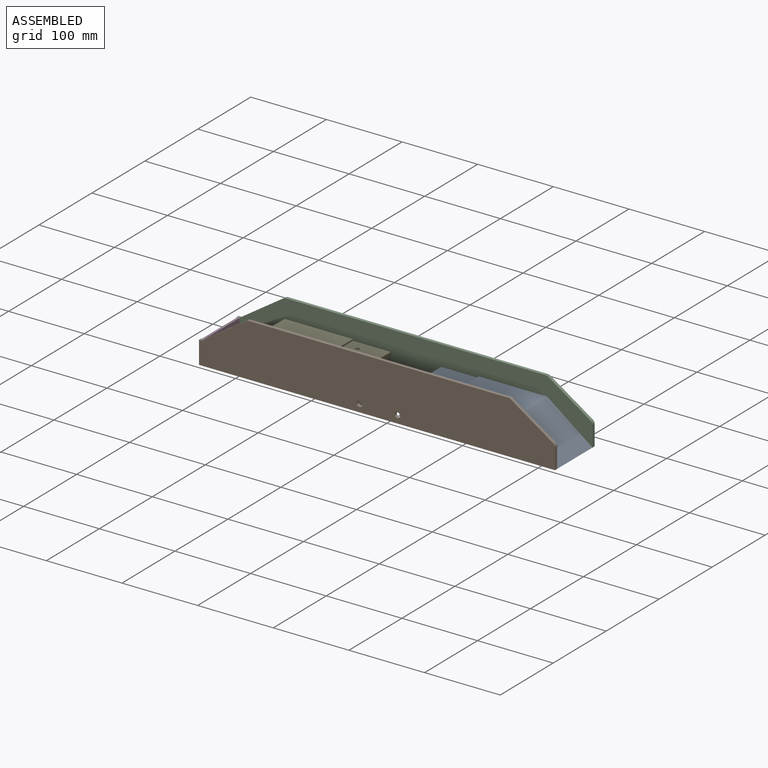
[diagram: assembled view]
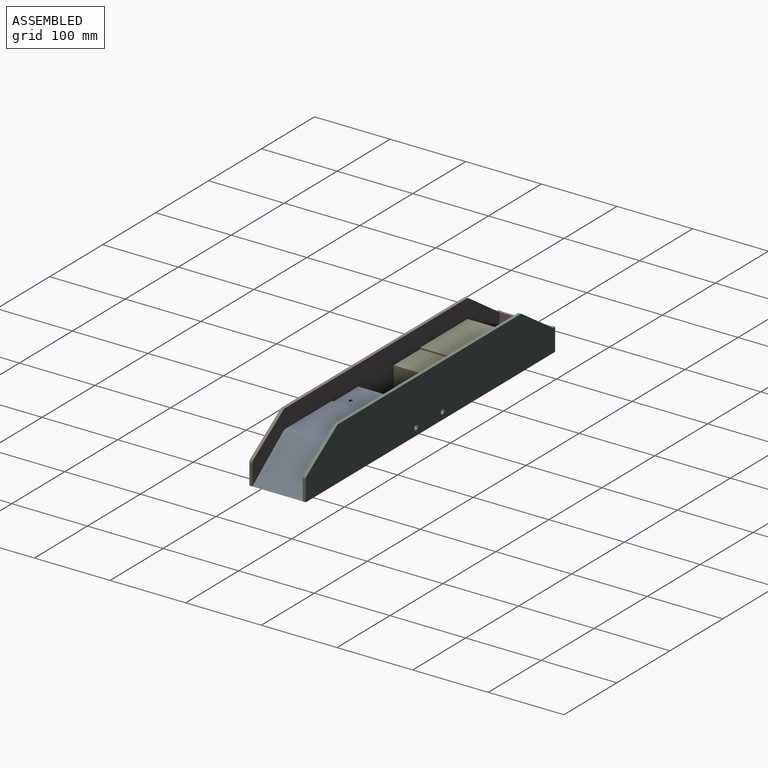
[diagram: assembled view, second angle]
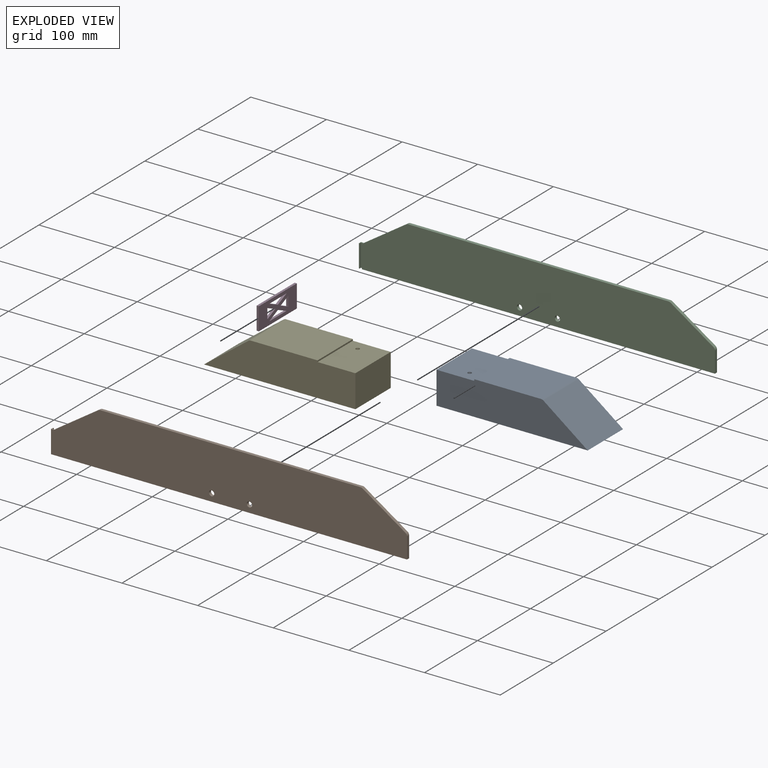
[diagram: exploded view]
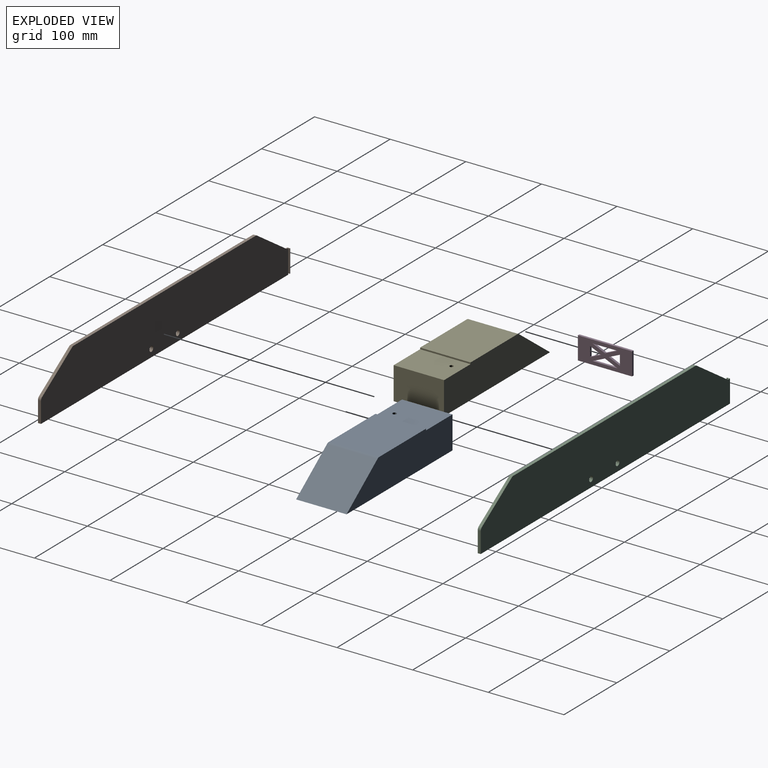
[diagram: exploded view, second angle]
ASSEMBLY  parts=5 mates=4
PART A: 11 faces, bbox 200x66.7x45 mm
  f0: plane 200x45mm, normal (0,-1,0), area 7549.7mm2, adj f2,f3,f4,f5,f6,f7,f8
  f1: plane 200x45mm, normal (0,1,0), area 7549.7mm2, adj f2,f3,f4,f5,f6,f7,f8
  f2: plane 66.7x43mm, normal (-1,0,0), area 2868.1mm2, adj f0,f1,f4,f7
  f3: plane 88.33x66.7mm, normal (0,0,1), area 5891.8mm2, adj f0,f1,f6,f8
  f4: plane 200x66.7mm, normal (0,0,-1), area 13340mm2, adj f0,f1,f2,f5
  f5: plane 66.7x58.67mm, normal (0.6,0,0.8), area 4891.3mm2, adj f0,f1,f4,f8
  f6: plane 66.7x2mm, normal (-1,0,0), area 133.4mm2, adj f0,f1,f3,f7
  f7: plane 66.7x50mm, normal (0,0,1), area 3315.4mm2, adj f0,f1,f2,f6,f9
  f8: cylinder r=5mm len=66.7mm, axis (0,1,0), area 214.6mm2, adj f0,f1,f3,f5
  f9: cylinder r=2.5mm len=10mm, axis (0,0,1), area 157.1mm2, adj f7,f10
  f10: plane 5x5mm, normal (0,0,1), area 19.6mm2, adj f9
PART B: 18 faces, bbox 470.7x4x70 mm
  f0: plane 30x1mm, normal (0,1,0), area 30mm2, adj f5,f11,f12,f13
  f1: plane 470.7x70mm, normal (0,-1,0), area 30310.5mm2, adj f2,f3,f5,f6,f7,f8,f9,f10
  f2: plane 27.32x4mm, normal (1,0,0), area 109.3mm2, adj f1,f4,f5,f10
  f3: plane 343.67x4mm, normal (0,0,1), area 1374.7mm2, adj f1,f4,f8,f9
  f4: plane 466.7x70mm, normal (0,1,0), area 30190.5mm2, adj f2,f3,f5,f6,f7,f8,f9,f10
  f5: plane 470.7x4mm, normal (0,0,-1), area 1875.3mm2, adj f0,f1,f2,f4,f12,f13,f14,f15
  f6: plane 58.74x39.16mm, normal (-0.55,0,0.83), area 282.4mm2, adj f1,f4,f8,f11,f15
  f7: plane 56.51x37.68mm, normal (0.55,0,0.83), area 271.7mm2, adj f1,f4,f9,f10
  f8: cylinder r=5mm len=4mm, axis (0,1,0), area 11.8mm2, adj f1,f3,f4,f6
  f9: cylinder r=5mm len=4mm, axis (0,-1,0), area 11.8mm2, adj f1,f3,f4,f7
  f10: cylinder r=5mm len=4.16mm, axis (0,-1,0), area 19.7mm2, adj f1,f2,f4,f7
  f11: plane 4x4mm, normal (0,0,1), area 8.5mm2, adj f0,f1,f6,f12,f13,f14
  f12: plane 30x4mm, normal (-1,0,0), area 120mm2, adj f0,f1,f5,f11
  f13: plane 30x2.5mm, normal (1,0,0), area 75mm2, adj f0,f5,f11,f14
  f14: plane 30x3mm, normal (0,1,0), area 90mm2, adj f5,f11,f13,f15
  f15: plane 30x2.5mm, normal (-1,0,0), area 75mm2, adj f4,f5,f6,f14
  f16: cylinder r=3.5mm len=7mm, axis (0,-1,0), area 88mm2, adj f1,f4
  f17: cylinder r=3.5mm len=7mm, axis (0,-1,0), area 88mm2, adj f1,f4
PART C: 18 faces, bbox 470.7x4x70 mm
  f0: plane 30x1mm, normal (0,-1,0), area 30mm2, adj f1,f11,f12,f14
  f1: plane 470.7x4mm, normal (0,0,-1), area 1875.3mm2, adj f0,f2,f4,f5,f12,f13,f14,f15
  f2: plane 470.7x70mm, normal (0,1,0), area 30310.5mm2, adj f1,f3,f5,f6,f7,f8,f9,f10
  f3: plane 343.67x4mm, normal (0,0,1), area 1374.7mm2, adj f2,f4,f8,f10
  f4: plane 466.7x70mm, normal (0,-1,0), area 30190.5mm2, adj f1,f3,f5,f6,f7,f8,f9,f10
  f5: plane 27.32x4mm, normal (1,0,0), area 109.3mm2, adj f1,f2,f4,f9
  f6: plane 58.74x39.16mm, normal (-0.55,0,0.83), area 282.4mm2, adj f2,f4,f8,f11,f15
  f7: plane 56.51x37.68mm, normal (0.55,0,0.83), area 271.7mm2, adj f2,f4,f9,f10
  f8: cylinder r=5mm len=4mm, axis (0,1,0), area 11.8mm2, adj f2,f3,f4,f6
  f9: cylinder r=5mm len=4.16mm, axis (0,1,0), area 19.7mm2, adj f2,f4,f5,f7
  f10: cylinder r=5mm len=4mm, axis (0,1,0), area 11.8mm2, adj f2,f3,f4,f7
  f11: plane 4x4mm, normal (0,0,1), area 8.5mm2, adj f0,f2,f6,f12,f13,f14
  f12: plane 30x4mm, normal (-1,0,0), area 120mm2, adj f0,f1,f2,f11
  f13: plane 30x3mm, normal (0,-1,0), area 90mm2, adj f1,f11,f14,f15
  f14: plane 30x2.5mm, normal (1,0,0), area 75mm2, adj f0,f1,f11,f13
  f15: plane 30x2.5mm, normal (-1,0,0), area 75mm2, adj f1,f4,f6,f13
  f16: cylinder r=3.5mm len=7mm, axis (0,1,0), area 88mm2, adj f2,f4
  f17: cylinder r=3.5mm len=7mm, axis (0,1,0), area 88mm2, adj f2,f4
PART D: 18 faces, bbox 3x71.7x30 mm
  f0: plane 14.73x6.62mm, normal (0,0.41,-0.91), area 48.4mm2, adj f1,f15,f16,f17
  f1: plane 13.25x3mm, normal (0,-1,0), area 39.7mm2, adj f0,f15,f16,f17
  f2: plane 14.73x6.62mm, normal (0,-0.41,-0.91), area 48.4mm2, adj f3,f11,f16,f17
  f3: plane 14.73x6.62mm, normal (0,-0.41,0.91), area 48.4mm2, adj f2,f11,f16,f17
  f4: plane 16.33x7.35mm, normal (0,-0.41,0.91), area 53.7mm2, adj f5,f12,f16,f17
  f5: plane 16.33x7.35mm, normal (0,0.41,0.91), area 53.7mm2, adj f4,f12,f16,f17
  f6: plane 16.33x7.35mm, normal (0,0.41,-0.91), area 53.7mm2, adj f7,f13,f16,f17
  f7: plane 16.33x7.35mm, normal (0,-0.41,-0.91), area 53.7mm2, adj f6,f13,f16,f17
  f8: plane 71.7x3mm, normal (0,0,1), area 215.1mm2, adj f9,f14,f16,f17
  f9: plane 30x3mm, normal (0,-1,0), area 90mm2, adj f8,f10,f16,f17
  f10: plane 71.7x3mm, normal (0,0,-1), area 215.1mm2, adj f9,f14,f16,f17
  f11: plane 13.25x3mm, normal (0,1,0), area 39.7mm2, adj f2,f3,f16,f17
  f12: plane 32.67x3mm, normal (0,0,-1), area 98mm2, adj f4,f5,f16,f17
  f13: plane 32.67x3mm, normal (0,0,1), area 98mm2, adj f6,f7,f16,f17
  f14: plane 30x3mm, normal (0,1,0), area 90mm2, adj f8,f10,f16,f17
  f15: plane 14.73x6.62mm, normal (0,0.41,0.91), area 48.4mm2, adj f0,f1,f16,f17
  f16: plane 71.7x30mm, normal (1,0,0), area 1715.9mm2, adj f0,f1,f2,f3,f4,f5,f6,f7
  f17: plane 71.7x30mm, normal (-1,0,0), area 1715.9mm2, adj f0,f1,f2,f3,f4,f5,f6,f7
PART E: 11 faces, bbox 200x66.7x45 mm
  f0: plane 200x45mm, normal (0,-1,0), area 7549.7mm2, adj f2,f3,f4,f5,f6,f7,f9
  f1: plane 200x45mm, normal (0,1,0), area 7549.7mm2, adj f2,f3,f4,f5,f6,f7,f9
  f2: plane 66.7x43mm, normal (1,0,0), area 2868.1mm2, adj f0,f1,f4,f7
  f3: plane 88.33x66.7mm, normal (0,0,1), area 5891.8mm2, adj f0,f1,f6,f9
  f4: plane 200x66.7mm, normal (0,0,-1), area 13340mm2, adj f0,f1,f2,f5
  f5: plane 66.7x58.67mm, normal (-0.6,0,0.8), area 4891.3mm2, adj f0,f1,f4,f9
  f6: plane 66.7x2mm, normal (1,0,0), area 133.4mm2, adj f0,f1,f3,f7
  f7: plane 66.7x50mm, normal (0,0,1), area 3315.4mm2, adj f0,f1,f2,f6,f8
  f8: cylinder r=2.5mm len=10mm, axis (0,0,1), area 157.1mm2, adj f7,f10
  f9: cylinder r=5mm len=66.7mm, axis (0,-1,0), area 214.6mm2, adj f0,f1,f3,f5
  f10: plane 5x5mm, normal (0,0,1), area 19.6mm2, adj f8
PLACE A t=(-6.16,-169.53,21.15)mm
PLACE B t=(-6.16,-169.53,21.15)mm
PLACE C t=(-6.16,-169.53,21.15)mm
PLACE D t=(-242.51,-169.53,36.15)mm
PLACE E t=(-6.16,-169.53,21.15)mm
MATE fastened E.f0 <-> B.f4  axis (0,-1,0) through (-239.51,-202.88,21.15)mm
MATE fastened C.f4 <-> E.f1  axis (0,-1,0) through (-239.51,-136.18,21.15)mm
MATE fastened A.f0 <-> B.f4  axis (0,-1,0) through (227.19,-202.88,21.15)mm
MATE fastened D.f14 <-> C.f13  axis (0,1,0) through (-241.01,-133.68,21.15)mm
